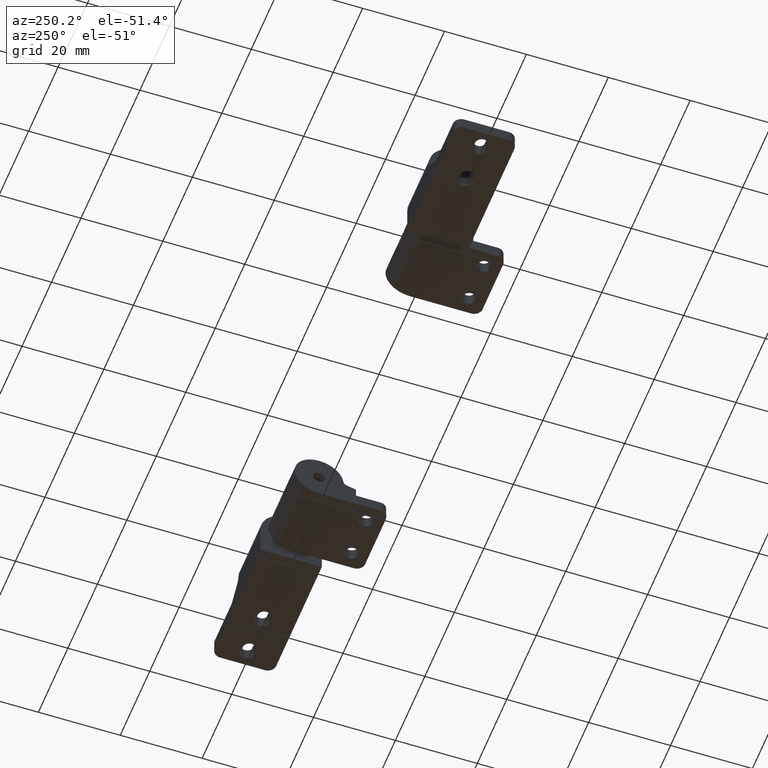
[diagram: clean part render]
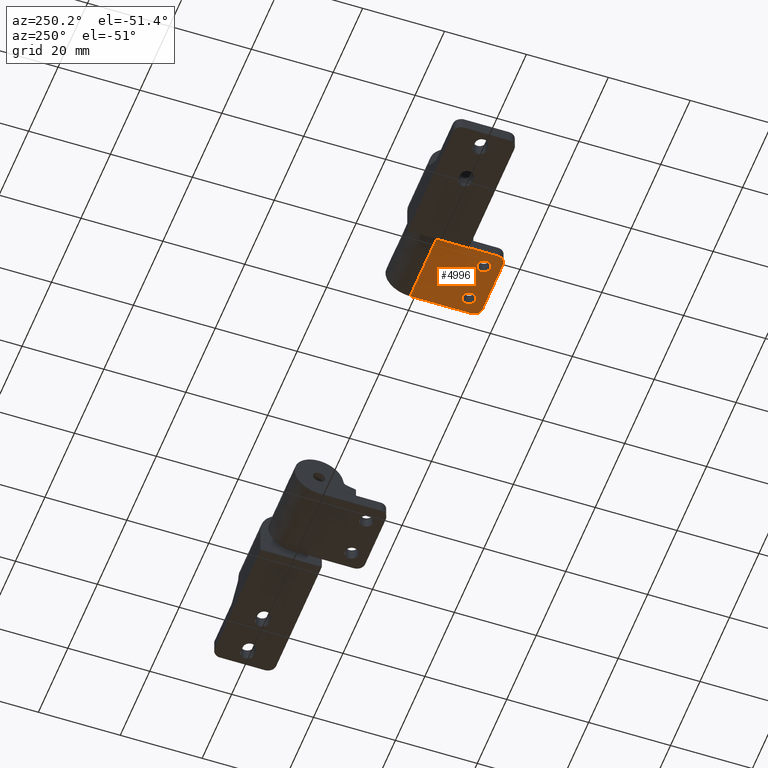
[diagram: same view with one face highlighted and labeled with its STEP entity id]
A machine part, auxiliary view. The second image highlights one B-rep face of the part: STEP entity #4996.
In plain terms, the highlighted face is a freeform B-spline surface patch.
Its self-contained STEP definition (entity closure, byte-faithful):
#3882=CARTESIAN_POINT('',(4.874465437635331,-14.595067733248939,-6.000000000000001));
#3883=VERTEX_POINT('',#3882);
#3889=CARTESIAN_POINT('',(3.400000000000000,-13.0,-6.0));
#3890=VERTEX_POINT('',#3889);
#3891=CARTESIAN_POINT('',(3.400000000000000,-13.0,-6.0));
#3892=CARTESIAN_POINT('',(3.400000000000001,-14.479024778095956,-6.0));
#3893=CARTESIAN_POINT('',(4.874465437635332,-14.595067733248937,-5.999999999999999));
#3901=(BOUNDED_CURVE()B_SPLINE_CURVE(2,(#3891,#3892,#3893),.UNSPECIFIED.,.F.,.U.)B_SPLINE_CURVE_WITH_KNOTS((3,3),(0.0,0.236331299644016),.UNSPECIFIED.)CURVE()GEOMETRIC_REPRESENTATION_ITEM()RATIONAL_B_SPLINE_CURVE((1.0,0.723120659763591,0.969723354108367))REPRESENTATION_ITEM(''));
#3902=EDGE_CURVE('',#3890,#3883,#3901,.T.);
#3904=CARTESIAN_POINT('',(5.125534562364668,-11.404932266751061,-6.0));
#3905=VERTEX_POINT('',#3904);
#3906=CARTESIAN_POINT('',(5.125534562364667,-11.404932266751059,-5.999999999999999));
#3907=CARTESIAN_POINT('',(5.062864175833677,-11.400000000000004,-6.0));
#3908=CARTESIAN_POINT('',(5.0,-11.400000000000000,-6.0));
#3909=CARTESIAN_POINT('',(3.400000000000001,-11.399999999999999,-6.0));
#3910=CARTESIAN_POINT('',(3.400000000000000,-13.0,-6.0));
#3918=(BOUNDED_CURVE()B_SPLINE_CURVE(2,(#3906,#3907,#3908,#3909,#3910),.UNSPECIFIED.,.F.,.U.)B_SPLINE_CURVE_WITH_KNOTS((3,2,3),(0.736331299644016,0.750000000000000,1.0),.UNSPECIFIED.)CURVE()GEOMETRIC_REPRESENTATION_ITEM()RATIONAL_B_SPLINE_CURVE((0.969723354108367,0.983986121422957,1.0,0.707106781186548,1.0))REPRESENTATION_ITEM(''));
#3919=EDGE_CURVE('',#3905,#3890,#3918,.T.);
#3995=CARTESIAN_POINT('',(6.600000000000000,-13.0,-6.0));
#3996=VERTEX_POINT('',#3995);
#3997=CARTESIAN_POINT('',(6.600000000000000,-13.0,-6.0));
#3998=CARTESIAN_POINT('',(6.599999999999999,-11.520975221904047,-6.000000000000001));
#3999=CARTESIAN_POINT('',(5.125534562364667,-11.404932266751059,-5.999999999999999));
#4007=(BOUNDED_CURVE()B_SPLINE_CURVE(2,(#3997,#3998,#3999),.UNSPECIFIED.,.F.,.U.)B_SPLINE_CURVE_WITH_KNOTS((3,3),(0.500000000000000,0.736331299644016),.UNSPECIFIED.)CURVE()GEOMETRIC_REPRESENTATION_ITEM()RATIONAL_B_SPLINE_CURVE((1.0,0.723120659763591,0.969723354108367))REPRESENTATION_ITEM(''));
#4008=EDGE_CURVE('',#3996,#3905,#4007,.T.);
#4010=CARTESIAN_POINT('',(4.874465437635331,-14.595067733248941,-6.000000000000001));
#4011=CARTESIAN_POINT('',(4.937135824166323,-14.599999999999994,-6.0));
#4012=CARTESIAN_POINT('',(5.0,-14.600000000000000,-6.0));
#4013=CARTESIAN_POINT('',(6.599999999999999,-14.600000000000009,-6.0));
#4014=CARTESIAN_POINT('',(6.600000000000000,-13.0,-6.0));
#4022=(BOUNDED_CURVE()B_SPLINE_CURVE(2,(#4010,#4011,#4012,#4013,#4014),.UNSPECIFIED.,.F.,.U.)B_SPLINE_CURVE_WITH_KNOTS((3,2,3),(0.236331299644016,0.250000000000000,0.500000000000000),.UNSPECIFIED.)CURVE()GEOMETRIC_REPRESENTATION_ITEM()RATIONAL_B_SPLINE_CURVE((0.969723354108367,0.983986121422956,1.0,0.707106781186548,1.0))REPRESENTATION_ITEM(''));
#4023=EDGE_CURVE('',#3883,#3996,#4022,.T.);
#4064=CARTESIAN_POINT('',(14.874465437635330,-14.595067733248939,-6.000000000000001));
#4065=VERTEX_POINT('',#4064);
#4071=CARTESIAN_POINT('',(13.400000000000000,-13.0,-6.0));
#4072=VERTEX_POINT('',#4071);
#4073=CARTESIAN_POINT('',(13.400000000000000,-13.0,-6.0));
#4074=CARTESIAN_POINT('',(13.399999999999997,-14.479024778095960,-5.999999999999999));
#4075=CARTESIAN_POINT('',(14.874465437635337,-14.595067733248944,-6.000000000000001));
#4083=(BOUNDED_CURVE()B_SPLINE_CURVE(2,(#4073,#4074,#4075),.UNSPECIFIED.,.F.,.U.)B_SPLINE_CURVE_WITH_KNOTS((3,3),(0.0,0.236331299644016),.UNSPECIFIED.)CURVE()GEOMETRIC_REPRESENTATION_ITEM()RATIONAL_B_SPLINE_CURVE((1.0,0.723120659763591,0.969723354108367))REPRESENTATION_ITEM(''));
#4084=EDGE_CURVE('',#4072,#4065,#4083,.T.);
#4086=CARTESIAN_POINT('',(15.125534562364670,-11.404932266751061,-5.999999999999999));
#4087=VERTEX_POINT('',#4086);
#4088=CARTESIAN_POINT('',(15.125534562364662,-11.404932266751064,-6.0));
#4089=CARTESIAN_POINT('',(15.062864175833672,-11.400000000000002,-6.0));
#4090=CARTESIAN_POINT('',(15.0,-11.400000000000000,-6.0));
#4091=CARTESIAN_POINT('',(13.399999999999999,-11.399999999999999,-6.0));
#4092=CARTESIAN_POINT('',(13.400000000000000,-13.0,-6.0));
#4100=(BOUNDED_CURVE()B_SPLINE_CURVE(2,(#4088,#4089,#4090,#4091,#4092),.UNSPECIFIED.,.F.,.U.)B_SPLINE_CURVE_WITH_KNOTS((3,2,3),(0.736331299644016,0.750000000000000,1.0),.UNSPECIFIED.)CURVE()GEOMETRIC_REPRESENTATION_ITEM()RATIONAL_B_SPLINE_CURVE((0.969723354108368,0.983986121422957,1.0,0.707106781186548,1.0))REPRESENTATION_ITEM(''));
#4101=EDGE_CURVE('',#4087,#4072,#4100,.T.);
#4177=CARTESIAN_POINT('',(16.600000000000001,-13.0,-6.0));
#4178=VERTEX_POINT('',#4177);
#4179=CARTESIAN_POINT('',(16.600000000000001,-13.0,-6.0));
#4180=CARTESIAN_POINT('',(16.600000000000005,-11.520975221904044,-6.0));
#4181=CARTESIAN_POINT('',(15.125534562364665,-11.404932266751056,-5.999999999999999));
#4189=(BOUNDED_CURVE()B_SPLINE_CURVE(2,(#4179,#4180,#4181),.UNSPECIFIED.,.F.,.U.)B_SPLINE_CURVE_WITH_KNOTS((3,3),(0.500000000000000,0.736331299644016),.UNSPECIFIED.)CURVE()GEOMETRIC_REPRESENTATION_ITEM()RATIONAL_B_SPLINE_CURVE((1.0,0.723120659763591,0.969723354108367))REPRESENTATION_ITEM(''));
#4190=EDGE_CURVE('',#4178,#4087,#4189,.T.);
#4192=CARTESIAN_POINT('',(14.874465437635330,-14.595067733248948,-6.000000000000001));
#4193=CARTESIAN_POINT('',(14.937135824166326,-14.600000000000003,-5.999999999999999));
#4194=CARTESIAN_POINT('',(15.0,-14.600000000000000,-6.0));
#4195=CARTESIAN_POINT('',(16.600000000000001,-14.600000000000009,-6.0));
#4196=CARTESIAN_POINT('',(16.600000000000001,-13.0,-6.0));
#4204=(BOUNDED_CURVE()B_SPLINE_CURVE(2,(#4192,#4193,#4194,#4195,#4196),.UNSPECIFIED.,.F.,.U.)B_SPLINE_CURVE_WITH_KNOTS((3,2,3),(0.236331299644016,0.250000000000000,0.500000000000000),.UNSPECIFIED.)CURVE()GEOMETRIC_REPRESENTATION_ITEM()RATIONAL_B_SPLINE_CURVE((0.969723354108367,0.983986121422957,1.0,0.707106781186548,1.0))REPRESENTATION_ITEM(''));
#4205=EDGE_CURVE('',#4065,#4178,#4204,.T.);
#4677=CARTESIAN_POINT('',(17.0,-17.0,-6.0));
#4678=VERTEX_POINT('',#4677);
#4684=CARTESIAN_POINT('',(19.0,-15.0,-6.0));
#4685=VERTEX_POINT('',#4684);
#4686=CARTESIAN_POINT('',(19.0,-15.0,-6.0));
#4687=CARTESIAN_POINT('',(19.000000000000011,-17.000000000000004,-6.0));
#4688=CARTESIAN_POINT('',(17.0,-17.0,-6.0));
#4696=(BOUNDED_CURVE()B_SPLINE_CURVE(2,(#4686,#4687,#4688),.UNSPECIFIED.,.F.,.U.)CURVE()GEOMETRIC_REPRESENTATION_ITEM()QUASI_UNIFORM_CURVE()RATIONAL_B_SPLINE_CURVE((1.0,0.707106781186548,1.0))REPRESENTATION_ITEM(''));
#4697=EDGE_CURVE('',#4685,#4678,#4696,.T.);
#4722=CARTESIAN_POINT('',(1.0,-15.0,-6.0));
#4723=VERTEX_POINT('',#4722);
#4729=CARTESIAN_POINT('',(3.0,-17.0,-6.0));
#4730=VERTEX_POINT('',#4729);
#4731=CARTESIAN_POINT('',(3.0,-17.0,-6.0));
#4732=CARTESIAN_POINT('',(1.0,-17.000000000000004,-6.0));
#4733=CARTESIAN_POINT('',(1.0,-15.0,-6.0));
#4741=(BOUNDED_CURVE()B_SPLINE_CURVE(2,(#4731,#4732,#4733),.UNSPECIFIED.,.F.,.U.)CURVE()GEOMETRIC_REPRESENTATION_ITEM()QUASI_UNIFORM_CURVE()RATIONAL_B_SPLINE_CURVE((1.0,0.707106781186548,1.0))REPRESENTATION_ITEM(''));
#4742=EDGE_CURVE('',#4730,#4723,#4741,.T.);
#4806=CARTESIAN_POINT('',(17.0,-17.0,-6.0));
#4807=CARTESIAN_POINT('',(3.0,-17.0,-6.0));
#4808=QUASI_UNIFORM_CURVE('',1,(#4806,#4807),.UNSPECIFIED.,.F.,.U.);
#4809=EDGE_CURVE('',#4678,#4730,#4808,.T.);
#4875=CARTESIAN_POINT('',(1.0,0.0,-6.0));
#4876=VERTEX_POINT('',#4875);
#4877=CARTESIAN_POINT('',(1.0,-15.0,-6.0));
#4878=CARTESIAN_POINT('',(1.0,0.0,-6.0));
#4879=QUASI_UNIFORM_CURVE('',1,(#4877,#4878),.UNSPECIFIED.,.F.,.U.);
#4880=EDGE_CURVE('',#4723,#4876,#4879,.T.);
#4926=CARTESIAN_POINT('',(19.0,0.0,-6.0));
#4927=VERTEX_POINT('',#4926);
#4928=CARTESIAN_POINT('',(19.0,-15.0,-6.0));
#4929=CARTESIAN_POINT('',(19.0,0.0,-6.0));
#4930=QUASI_UNIFORM_CURVE('',1,(#4928,#4929),.UNSPECIFIED.,.F.,.U.);
#4931=EDGE_CURVE('',#4685,#4927,#4930,.T.);
#4967=CARTESIAN_POINT('',(0.100900034887493,-17.849149967050700,-6.0));
#4968=CARTESIAN_POINT('',(19.899100447910129,-17.849149967050700,-6.0));
#4969=CARTESIAN_POINT('',(0.100900034887493,0.849150423026233,-6.0));
#4970=CARTESIAN_POINT('',(19.899100447910129,0.849150423026233,-6.0));
#4971=B_SPLINE_SURFACE_WITH_KNOTS('',1,1,((#4967,#4969),(#4968,#4970)),.UNSPECIFIED.,.F.,.F.,.U.,(2,2),(2,2),(0.0,19.798200413022631),(0.0,18.698300390076941),.UNSPECIFIED.);
#4972=ORIENTED_EDGE('',*,*,#4809,.T.);
#4973=ORIENTED_EDGE('',*,*,#4742,.T.);
#4974=ORIENTED_EDGE('',*,*,#4880,.T.);
#4975=CARTESIAN_POINT('',(19.0,0.0,-6.0));
#4976=CARTESIAN_POINT('',(1.0,0.0,-6.0));
#4977=QUASI_UNIFORM_CURVE('',1,(#4975,#4976),.UNSPECIFIED.,.F.,.U.);
#4978=EDGE_CURVE('',#4927,#4876,#4977,.T.);
#4979=ORIENTED_EDGE('',*,*,#4978,.F.);
#4980=ORIENTED_EDGE('',*,*,#4931,.F.);
#4981=ORIENTED_EDGE('',*,*,#4697,.T.);
#4982=EDGE_LOOP('',(#4972,#4973,#4974,#4979,#4980,#4981));
#4983=FACE_OUTER_BOUND('',#4982,.T.);
#4984=ORIENTED_EDGE('',*,*,#4190,.T.);
#4985=ORIENTED_EDGE('',*,*,#4101,.T.);
#4986=ORIENTED_EDGE('',*,*,#4084,.T.);
#4987=ORIENTED_EDGE('',*,*,#4205,.T.);
#4988=EDGE_LOOP('',(#4984,#4985,#4986,#4987));
#4989=FACE_BOUND('',#4988,.T.);
#4990=ORIENTED_EDGE('',*,*,#4008,.T.);
#4991=ORIENTED_EDGE('',*,*,#3919,.T.);
#4992=ORIENTED_EDGE('',*,*,#3902,.T.);
#4993=ORIENTED_EDGE('',*,*,#4023,.T.);
#4994=EDGE_LOOP('',(#4990,#4991,#4992,#4993));
#4995=FACE_BOUND('',#4994,.T.);
#4996=ADVANCED_FACE('',(#4983,#4989,#4995),#4971,.F.);